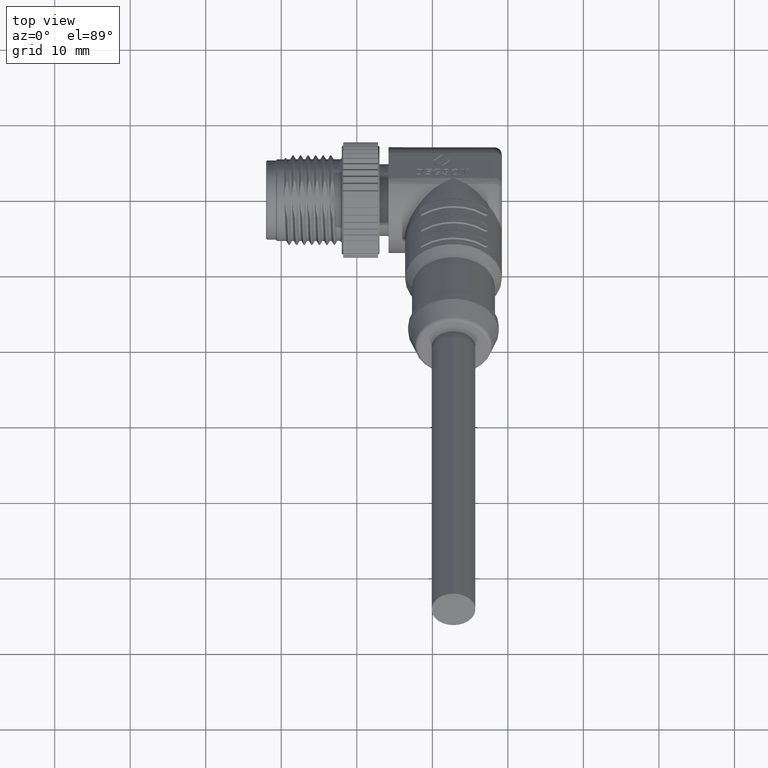
[diagram: clean part render]
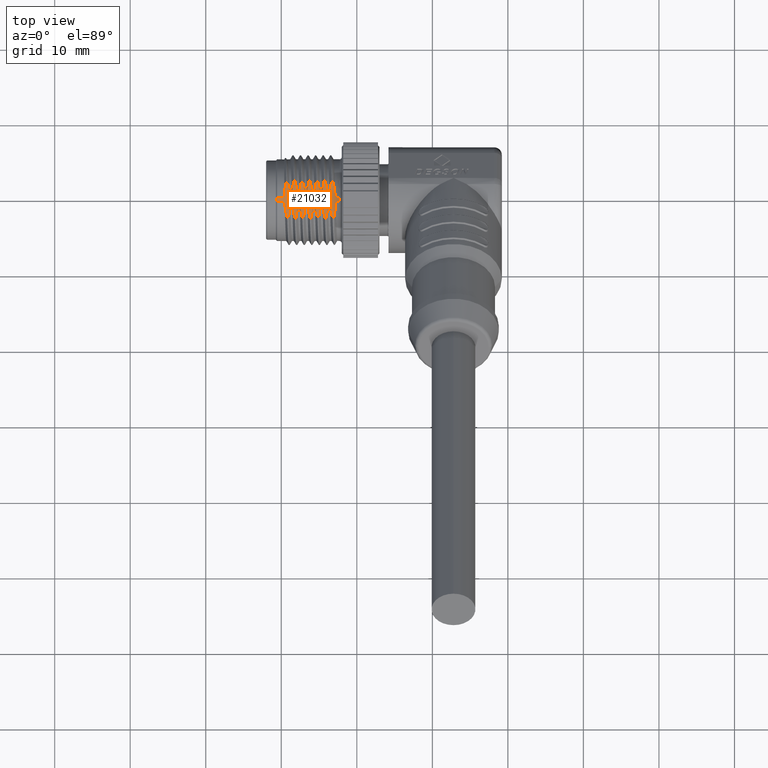
[diagram: same view with one face highlighted and labeled with its STEP entity id]
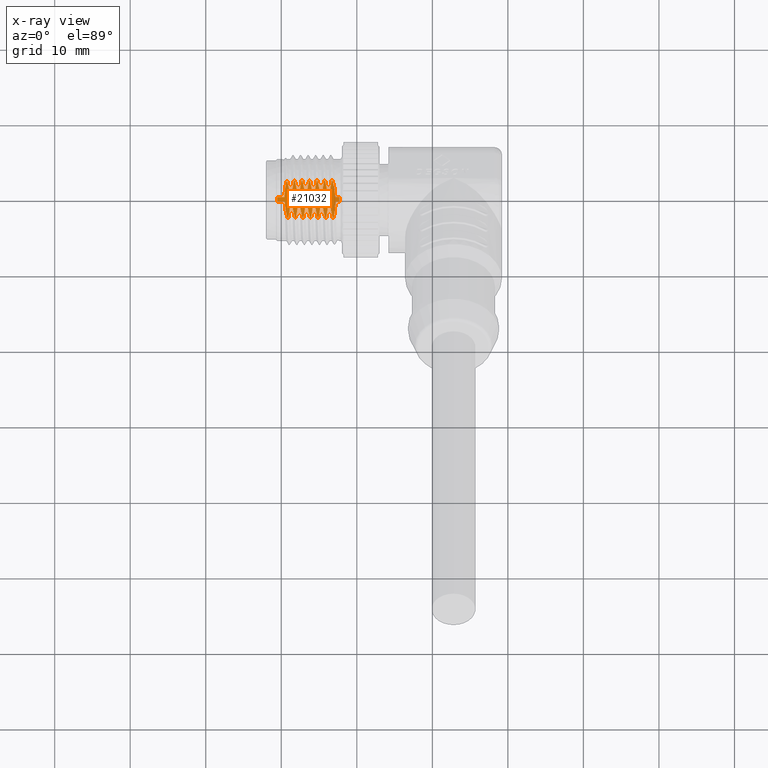
[diagram: x-ray of the same camera — body ghosted, the highlighted face saturated]
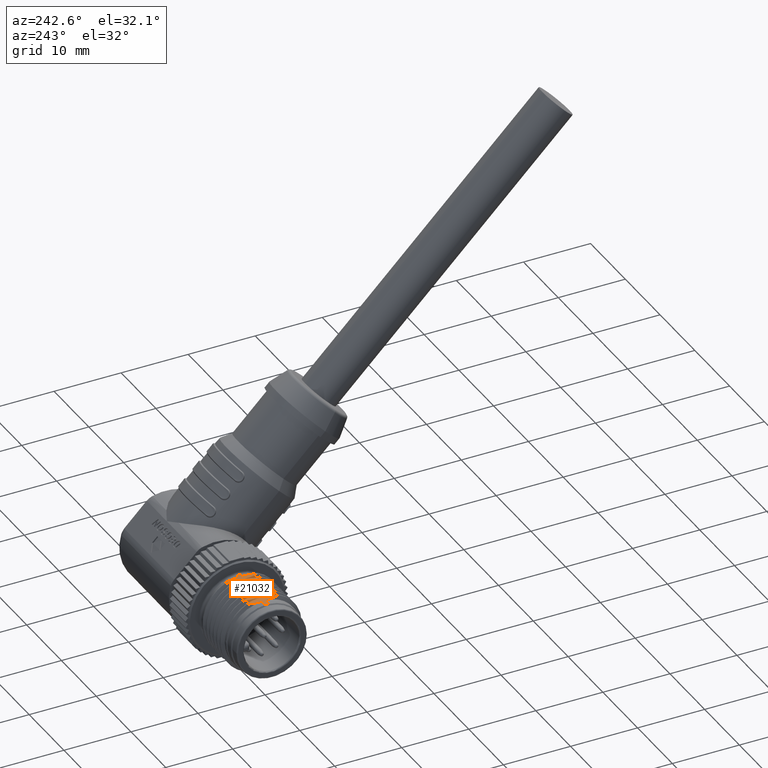
[diagram: same view with one face highlighted and labeled with its STEP entity id]
A machine part, top view. The second image highlights one B-rep face of the part: STEP entity #21032.
The next image is the same camera in x-ray: the body ghosted, the highlighted face saturated — about 0% of this face is hidden behind the body in this view.
A second angle (auxiliary view) of the same face is appended — the face is thin or edge-on in the first view.
In plain terms, the highlighted planar face has unit normal (0, 0, -1).
Its self-contained STEP definition (entity closure, byte-faithful):
#1044=DIRECTION('',(9.999999999989E-1,1.466614720524E-7,-1.479390784108E-6));
#1045=VECTOR('',#1044,9.861735220107E-1);
#1046=CARTESIAN_POINT('',(-5.499998745551E-1,-3.031043628207E-1,
5.400000180981E0));
#1047=LINE('',#1046,#1045);
#1070=CARTESIAN_POINT('',(4.758451730551E-1,1.318685910492E0,5.400006082940E0));
#1071=CARTESIAN_POINT('',(4.913522477618E-1,1.431905223739E0,5.400006082940E0));
#1072=CARTESIAN_POINT('',(5.264749140414E-1,1.660852474761E0,5.399996687401E0));
#1073=CARTESIAN_POINT('',(5.915335660793E-1,2.010904504959E0,5.400002469687E0));
#1074=CARTESIAN_POINT('',(6.435134863473E-1,2.250416775405E0,5.399996445797E0));
#1075=CARTESIAN_POINT('',(6.716387361948E-1,2.371564042817E0,5.399996445797E0));
#1089=DIRECTION('',(9.312771037324E-8,-9.999999999999E-1,3.503022343318E-7));
#1090=VECTOR('',#1089,6.062087109155E-1);
#1091=CARTESIAN_POINT('',(-5.499999310099E-1,3.031043480947E-1,
5.399999968625E0));
#1092=LINE('',#1091,#1090);
#1146=DIRECTION('',(-9.999999999874E-1,2.258880366862E-8,5.024770753766E-6));
#1147=VECTOR('',#1146,2.544969466393E-1);
#1148=CARTESIAN_POINT('',(1.418325507230E0,3.031043482722E-1,5.399998712403E0));
#1149=LINE('',#1148,#1147);
#1164=DIRECTION('',(-9.999999999611E-1,-3.531925421790E-8,8.816887197626E-6));
#1165=VECTOR('',#1164,9.682949655134E-1);
#1166=CARTESIAN_POINT('',(4.182950344658E-1,3.031043822942E-1,
5.399991431277E0));
#1167=LINE('',#1166,#1165);
#1168=CARTESIAN_POINT('',(4.361736474545E-1,-3.031042181870E-1,
5.399998722045E0));
#1169=CARTESIAN_POINT('',(4.509763668705E-1,-5.427595488345E-1,
5.399998722045E0));
#1170=CARTESIAN_POINT('',(4.990770733604E-1,-1.024053681732E0,
5.400000271320E0));
#1171=CARTESIAN_POINT('',(6.232628769638E-1,-1.746693454759E0,
5.400000967313E0));
#1172=CARTESIAN_POINT('',(7.400643013381E-1,-2.239895998504E0,
5.399997562057E0));
#1173=CARTESIAN_POINT('',(8.062326809865E-1,-2.488655192577E0,
5.399997562057E0));
#1182=DIRECTION('',(9.999999999998E-1,-6.368372953770E-7,-2.027353449002E-7));
#1183=VECTOR('',#1182,1.249968446376E-1);
#1184=CARTESIAN_POINT('',(8.062326809865E-1,-2.488655192577E0,
5.399997562057E0));
#1185=LINE('',#1184,#1183);
#1205=CARTESIAN_POINT('',(9.312295256240E-1,-2.488655272180E0,
5.399997536716E0));
#1206=CARTESIAN_POINT('',(9.853747384968E-1,-2.239567378136E0,
5.399997536716E0));
#1207=CARTESIAN_POINT('',(1.076981939258E0,-1.745809821720E0,5.400000977853E0));
#1208=CARTESIAN_POINT('',(1.160975259694E0,-1.023203833550E0,5.400000272441E0));
#1209=CARTESIAN_POINT('',(1.180955306094E0,-5.423699979430E-1,
5.399998712403E0));
#1210=CARTESIAN_POINT('',(1.181674492771E0,-3.031043482722E-1,
5.399998712403E0));
#1234=DIRECTION('',(9.999999999999E-1,5.132918582216E-7,3.789988213435E-8));
#1235=VECTOR('',#1234,2.544991546333E-1);
#1236=CARTESIAN_POINT('',(1.181674492771E0,-3.031043482722E-1,
5.399998712403E0));
#1237=LINE('',#1236,#1235);
#1278=CARTESIAN_POINT('',(1.436173647405E0,-3.031042176398E-1,
5.399998722049E0));
#1279=CARTESIAN_POINT('',(1.450976716299E0,-5.427652063264E-1,
5.399998722049E0));
#1280=CARTESIAN_POINT('',(1.499079086980E0,-1.024066567457E0,5.400000271318E0));
#1281=CARTESIAN_POINT('',(1.623261505101E0,-1.746685421875E0,5.400000967313E0));
#1282=CARTESIAN_POINT('',(1.740063381625E0,-2.239892540853E0,5.399997562057E0));
#1283=CARTESIAN_POINT('',(1.806232680986E0,-2.488655192577E0,5.399997562057E0));
#1292=DIRECTION('',(9.999999999998E-1,-6.368369720711E-7,-2.027360412494E-7));
#1293=VECTOR('',#1292,1.249968446377E-1);
#1294=CARTESIAN_POINT('',(1.806232680986E0,-2.488655192577E0,5.399997562057E0));
#1295=LINE('',#1294,#1293);
#1315=CARTESIAN_POINT('',(1.931229525624E0,-2.488655272180E0,5.399997536716E0));
#1316=CARTESIAN_POINT('',(1.985374813384E0,-2.239567033628E0,5.399997536716E0));
#1317=CARTESIAN_POINT('',(2.076982008472E0,-1.745809031225E0,5.400000977853E0));
#1318=CARTESIAN_POINT('',(2.160975027318E0,-1.023206306676E0,5.400000272441E0));
#1319=CARTESIAN_POINT('',(2.180955302860E0,-5.423710740453E-1,
5.399998712403E0));
#1320=CARTESIAN_POINT('',(2.181674492771E0,-3.031043482721E-1,
5.399998712403E0));
#1344=DIRECTION('',(9.999999999999E-1,5.132919195136E-7,3.790045098925E-8));
#1345=VECTOR('',#1344,2.544991546331E-1);
#1346=CARTESIAN_POINT('',(2.181674492771E0,-3.031043482721E-1,
5.399998712403E0));
#1347=LINE('',#1346,#1345);
#1388=CARTESIAN_POINT('',(2.436173647404E0,-3.031042176398E-1,
5.399998722049E0));
#1389=CARTESIAN_POINT('',(2.450976428233E0,-5.427605425487E-1,
5.399998722049E0));
#1390=CARTESIAN_POINT('',(2.499077416704E0,-1.024055952296E0,5.400000271318E0));
#1391=CARTESIAN_POINT('',(2.623262761554E0,-1.746692677592E0,5.400000967313E0));
#1392=CARTESIAN_POINT('',(2.740064211624E0,-2.239895661228E0,5.399997562057E0));
#1393=CARTESIAN_POINT('',(2.806232680985E0,-2.488655192577E0,5.399997562057E0));
#1402=DIRECTION('',(9.999999999998E-1,-6.368372101091E-7,-2.027354230616E-7));
#1403=VECTOR('',#1402,1.249968446377E-1);
#1404=CARTESIAN_POINT('',(2.806232680985E0,-2.488655192577E0,5.399997562057E0));
#1405=LINE('',#1404,#1403);
#1425=CARTESIAN_POINT('',(2.931229525623E0,-2.488655272180E0,5.399997536716E0));
#1426=CARTESIAN_POINT('',(2.985374747352E0,-2.239567337397E0,5.399997536716E0));
#1427=CARTESIAN_POINT('',(3.076981943063E0,-1.745809729767E0,5.400000977853E0));
#1428=CARTESIAN_POINT('',(3.160975212124E0,-1.023204354740E0,5.400000272441E0));
#1429=CARTESIAN_POINT('',(3.180955305413E0,-5.423702243700E-1,
5.399998712403E0));
#1430=CARTESIAN_POINT('',(3.181674492771E0,-3.031043482722E-1,
5.399998712403E0));
#1454=DIRECTION('',(9.999999999881E-1,-6.740062732002E-9,4.877231451051E-6));
#1455=VECTOR('',#1454,2.544970119758E-1);
#1456=CARTESIAN_POINT('',(3.181674492771E0,-3.031043482722E-1,
5.399998712403E0));
#1457=LINE('',#1456,#1455);
#1503=CARTESIAN_POINT('',(3.436171504743E0,-3.031043499875E-1,
5.399999953644E0));
#1504=CARTESIAN_POINT('',(3.450745839524E0,-5.425308730506E-1,
5.399999953644E0));
#1505=CARTESIAN_POINT('',(3.499104927850E0,-1.023487853618E0,5.399999072660E0));
#1506=CARTESIAN_POINT('',(3.623137751781E0,-1.746271612088E0,5.400003315225E0));
#1507=CARTESIAN_POINT('',(3.739992555808E0,-2.239723937327E0,5.399992882703E0));
#1508=CARTESIAN_POINT('',(3.806244905448E0,-2.488652672933E0,5.399992882703E0));
#1510=DIRECTION('',(9.999999916465E-1,-5.410223281456E-5,1.173884144615E-4));
#1511=VECTOR('',#1510,1.249997690710E-1);
#1512=CARTESIAN_POINT('',(3.806244905448E0,-2.488652672933E0,5.399992882703E0));
#1513=LINE('',#1512,#1511);
#1528=CARTESIAN_POINT('',(3.931244673475E0,-2.488659435700E0,5.400007556227E0));
#1529=CARTESIAN_POINT('',(3.985378868147E0,-2.239368695295E0,5.400007556227E0));
#1530=CARTESIAN_POINT('',(4.077082145441E0,-1.745364384242E0,5.399988822027E0));
#1531=CARTESIAN_POINT('',(4.161009222342E0,-1.022781518185E0,5.400027788565E0));
#1532=CARTESIAN_POINT('',(4.180925398797E0,-5.421837686793E-1,
5.399942611997E0));
#1533=CARTESIAN_POINT('',(4.181844582285E0,-3.031002838464E-1,
5.399942611997E0));
#1535=DIRECTION('',(9.999999755438E-1,-1.546733717529E-5,2.206198914105E-4));
#1536=VECTOR('',#1535,2.543290713397E-1);
#1537=CARTESIAN_POINT('',(4.181844582285E0,-3.031002838464E-1,
5.399942611997E0));
#1538=LINE('',#1537,#1536);
#1584=CARTESIAN_POINT('',(4.436173647404E0,-3.031042176399E-1,
5.399998722049E0));
#1585=CARTESIAN_POINT('',(4.450976379383E0,-5.427597516758E-1,
5.399998722049E0));
#1586=CARTESIAN_POINT('',(4.499077142405E0,-1.024054145517E0,5.400000271318E0));
#1587=CARTESIAN_POINT('',(4.623262864931E0,-1.746693354124E0,5.400000967313E0));
#1588=CARTESIAN_POINT('',(4.740064289599E0,-2.239895954371E0,5.399997562057E0));
#1589=CARTESIAN_POINT('',(4.806232680986E0,-2.488655192578E0,5.399997562057E0));
#1598=DIRECTION('',(9.999999999998E-1,-6.368369081255E-7,-2.027362117855E-7));
#1599=VECTOR('',#1598,1.249968446368E-1);
#1600=CARTESIAN_POINT('',(4.806232680986E0,-2.488655192578E0,5.399997562057E0));
#1601=LINE('',#1600,#1599);
#1621=CARTESIAN_POINT('',(4.931229525623E0,-2.488655272180E0,5.399997536716E0));
#1622=CARTESIAN_POINT('',(4.985373938804E0,-2.239571057016E0,5.399997536716E0));
#1623=CARTESIAN_POINT('',(5.076982031628E0,-1.745817969871E0,5.400000977853E0));
#1624=CARTESIAN_POINT('',(5.160981587529E0,-1.023133681522E0,5.400000272441E0));
#1625=CARTESIAN_POINT('',(5.180955397642E0,-5.423395408138E-1,
5.399998712403E0));
#1626=CARTESIAN_POINT('',(5.181674492771E0,-3.031043482722E-1,
5.399998712403E0));
#1650=DIRECTION('',(9.999999999999E-1,5.132918274656E-7,3.789977045723E-8));
#1651=VECTOR('',#1650,2.544991546339E-1);
#1652=CARTESIAN_POINT('',(5.181674492771E0,-3.031043482722E-1,
5.399998712403E0));
#1653=LINE('',#1652,#1651);
#1694=CARTESIAN_POINT('',(5.436173647404E0,-3.031042176399E-1,
5.399998722049E0));
#1695=CARTESIAN_POINT('',(5.450976369170E0,-5.427595863236E-1,
5.399998722049E0));
#1696=CARTESIAN_POINT('',(5.499077087122E0,-1.024053766283E0,5.400000271318E0));
#1697=CARTESIAN_POINT('',(5.623262862248E0,-1.746693373386E0,5.400000967313E0));
#1698=CARTESIAN_POINT('',(5.740064292050E0,-2.239895963587E0,5.399997562057E0));
#1699=CARTESIAN_POINT('',(5.806232680986E0,-2.488655192577E0,5.399997562057E0));
#1708=DIRECTION('',(9.999999999998E-1,-6.368373166990E-7,-2.027352880570E-7));
#1709=VECTOR('',#1708,1.249968446365E-1);
#1710=CARTESIAN_POINT('',(5.806232680986E0,-2.488655192577E0,5.399997562057E0));
#1711=LINE('',#1710,#1709);
#1731=CARTESIAN_POINT('',(5.931229525622E0,-2.488655272180E0,5.399997536716E0));
#1732=CARTESIAN_POINT('',(5.985373417848E0,-2.239573453599E0,5.399997536716E0));
#1733=CARTESIAN_POINT('',(6.076982274582E0,-1.745823215641E0,5.400000977853E0));
#1734=CARTESIAN_POINT('',(6.160986534244E0,-1.023078567994E0,5.400000272441E0));
#1735=CARTESIAN_POINT('',(6.180955469549E0,-5.423156182703E-1,
5.399998712403E0));
#1736=CARTESIAN_POINT('',(6.181674492771E0,-3.031043482721E-1,
5.399998712403E0));
#1760=DIRECTION('',(9.999999999938E-1,1.384357714635E-7,3.526260016911E-6));
#1761=VECTOR('',#1760,2.544976101183E-1);
#1762=CARTESIAN_POINT('',(6.181674492771E0,-3.031043482721E-1,
5.399998712403E0));
#1763=LINE('',#1762,#1761);
#1797=CARTESIAN_POINT('',(6.436172102888E0,-3.031043130406E-1,
5.399999609828E0));
#1798=CARTESIAN_POINT('',(6.450972286677E0,-5.427248953624E-1,
5.399999609828E0));
#1799=CARTESIAN_POINT('',(6.499072487120E0,-1.023971948761E0,5.400000064455E0));
#1800=CARTESIAN_POINT('',(6.623230992189E0,-1.746555604774E0,5.400000359665E0));
#1801=CARTESIAN_POINT('',(6.740049345197E0,-2.239837623E0,5.399999117811E0));
#1802=CARTESIAN_POINT('',(6.806231933853E0,-2.488655931654E0,5.399999117811E0));
#1804=DIRECTION('',(9.999999999999E-1,-3.366309411988E-7,-9.243224811939E-8));
#1805=VECTOR('',#1804,1.249983333885E-1);
#1806=CARTESIAN_POINT('',(6.806231933853E0,-2.488655931654E0,5.399999117811E0));
#1807=LINE('',#1806,#1805);
#1817=CARTESIAN_POINT('',(6.931230267241E0,-2.488655973732E0,5.399999106257E0));
#1818=CARTESIAN_POINT('',(6.985387603024E0,-2.239505225206E0,5.399999106257E0));
#1819=CARTESIAN_POINT('',(7.077008043172E0,-1.745663064640E0,5.400000364836E0));
#1820=CARTESIAN_POINT('',(7.160975807224E0,-1.023110824600E0,5.400000063688E0));
#1821=CARTESIAN_POINT('',(7.180957420026E0,-5.423303618415E-1,
5.399999608170E0));
#1822=CARTESIAN_POINT('',(7.181676042293E0,-3.031043529310E-1,
5.399999608170E0));
#1852=DIRECTION('',(9.999999999997E-1,-8.594053925484E-9,7.490763512368E-7));
#1853=VECTOR('',#1852,5.183239577071E-1);
#1854=CARTESIAN_POINT('',(7.181676042293E0,-3.031043529310E-1,
5.399999608170E0));
#1855=LINE('',#1854,#1853);
#1886=DIRECTION('',(0.E0,1.E0,2.637245418130E-13));
#1887=VECTOR('',#1886,6.062087147709E-1);
#1888=CARTESIAN_POINT('',(7.7E0,-3.031043573855E-1,5.399999996434E0));
#1889=LINE('',#1888,#1887);
#12723=DIRECTION('',(-9.999999999971E-1,-2.606348562702E-7,-2.376814961864E-6));
#12724=VECTOR('',#12723,5.361736474059E-1);
#12725=CARTESIAN_POINT('',(7.7E0,3.031043573854E-1,5.399999996434E0));
#12726=LINE('',#12725,#12724);
#12753=CARTESIAN_POINT('',(7.163826352596E0,3.031042176399E-1,
5.399998722049E0));
#12754=CARTESIAN_POINT('',(7.149019232712E0,5.428307916428E-1,
5.399998722049E0));
#12755=CARTESIAN_POINT('',(7.100898738939E0,1.024216817286E0,5.400000271318E0));
#12756=CARTESIAN_POINT('',(6.976740208948E0,1.746663853960E0,5.400000967313E0));
#12757=CARTESIAN_POINT('',(6.859939169864E0,2.239882948560E0,5.399997562057E0));
#12758=CARTESIAN_POINT('',(6.793767319013E0,2.488655192577E0,5.399997562057E0));
#12782=DIRECTION('',(-9.999999999998E-1,6.368372527465E-7,-2.027354372741E-7));
#12783=VECTOR('',#12782,1.249968446369E-1);
#12784=CARTESIAN_POINT('',(6.793767319013E0,2.488655192577E0,5.399997562057E0));
#12785=LINE('',#12784,#12783);
#12805=CARTESIAN_POINT('',(6.668770474376E0,2.488655272180E0,5.399997536716E0));
#12806=CARTESIAN_POINT('',(6.614626263695E0,2.239571988587E0,5.399997536716E0));
#12807=CARTESIAN_POINT('',(6.523018007177E0,1.745820055350E0,5.400000977853E0));
#12808=CARTESIAN_POINT('',(6.439017100655E0,1.023119213290E0,5.400000272441E0));
#12809=CARTESIAN_POINT('',(6.419044583471E0,5.423332573987E-1,
5.399998712403E0));
#12810=CARTESIAN_POINT('',(6.418325507229E0,3.031043482722E-1,
5.399998712403E0));
#12819=DIRECTION('',(-9.999999999999E-1,-5.132919581204E-7,3.790043353969E-8));
#12820=VECTOR('',#12819,2.544991546332E-1);
#12821=CARTESIAN_POINT('',(6.418325507229E0,3.031043482722E-1,
5.399998712403E0));
#12822=LINE('',#12821,#12820);
#12863=CARTESIAN_POINT('',(6.163826352596E0,3.031042176398E-1,
5.399998722049E0));
#12864=CARTESIAN_POINT('',(6.149022515747E0,5.427776394566E-1,
5.399998722049E0));
#12865=CARTESIAN_POINT('',(6.100916729411E0,1.024095064582E0,5.400000271318E0));
#12866=CARTESIAN_POINT('',(5.976738591226E0,1.746682482422E0,5.400000967313E0));
#12867=CARTESIAN_POINT('',(5.859936971786E0,2.239891212206E0,5.399997562057E0));
#12868=CARTESIAN_POINT('',(5.793767319012E0,2.488655192577E0,5.399997562057E0));
#12892=DIRECTION('',(-9.999999999998E-1,6.368372136677E-7,-2.027356149149E-7));
#12893=VECTOR('',#12892,1.249968446366E-1);
#12894=CARTESIAN_POINT('',(5.793767319012E0,2.488655192577E0,5.399997562057E0));
#12895=LINE('',#12894,#12893);
#12915=CARTESIAN_POINT('',(5.668770474375E0,2.488655272180E0,5.399997536716E0));
#12916=CARTESIAN_POINT('',(5.614625224885E0,2.239567209681E0,5.399997536716E0));
#12917=CARTESIAN_POINT('',(5.523018044598E0,1.745809441352E0,5.400000977853E0));
#12918=CARTESIAN_POINT('',(5.439024935015E0,1.023205966535E0,5.400000272441E0));
#12919=CARTESIAN_POINT('',(5.419044696691E0,5.423709246220E-1,
5.399998712403E0));
#12920=CARTESIAN_POINT('',(5.418325507229E0,3.031043482722E-1,
5.399998712403E0));
#12929=DIRECTION('',(-9.999999999999E-1,-5.132918656374E-7,3.789995891229E-8));
#12930=VECTOR('',#12929,2.544991546334E-1);
#12931=CARTESIAN_POINT('',(5.418325507229E0,3.031043482722E-1,
5.399998712403E0));
#12932=LINE('',#12931,#12930);
#12973=CARTESIAN_POINT('',(5.163826352595E0,3.031042176399E-1,
5.399998722049E0));
#12974=CARTESIAN_POINT('',(5.149021835162E0,5.427886581E-1,5.399998722049E0));
#12975=CARTESIAN_POINT('',(5.100913024187E0,1.024120321496E0,5.400000271318E0));
#12976=CARTESIAN_POINT('',(4.976738646660E0,1.746680030978E0,5.400000967313E0));
#12977=CARTESIAN_POINT('',(4.859937267597E0,2.239890100109E0,5.399997562057E0));
#12978=CARTESIAN_POINT('',(4.793767319013E0,2.488655192577E0,5.399997562057E0));
#13002=DIRECTION('',(-9.999999999998E-1,6.368375298650E-7,-2.027347906638E-7));
#13003=VECTOR('',#13002,1.249968446370E-1);
#13004=CARTESIAN_POINT('',(4.793767319013E0,2.488655192577E0,5.399997562057E0));
#13005=LINE('',#13004,#13003);
#13025=CARTESIAN_POINT('',(4.668770474376E0,2.488655272180E0,5.399997536716E0));
#13026=CARTESIAN_POINT('',(4.614625212684E0,2.239567153550E0,5.399997536716E0));
#13027=CARTESIAN_POINT('',(4.523018040171E0,1.745809314950E0,5.400000977853E0));
#13028=CARTESIAN_POINT('',(4.439025004386E0,1.023206727805E0,5.400000272441E0));
#13029=CARTESIAN_POINT('',(4.419044697685E0,5.423712553131E-1,
5.399998712403E0));
#13030=CARTESIAN_POINT('',(4.418325507229E0,3.031043482722E-1,
5.399998712403E0));
#13039=DIRECTION('',(-9.999999999999E-1,-5.132918680368E-7,3.789995193247E-8));
#13040=VECTOR('',#13039,2.544991546334E-1);
#13041=CARTESIAN_POINT('',(4.418325507229E0,3.031043482722E-1,
5.399998712403E0));
#13042=LINE('',#13041,#13040);
#13083=CARTESIAN_POINT('',(4.163826352595E0,3.031042176399E-1,
5.399998722049E0));
#13084=CARTESIAN_POINT('',(4.149021230897E0,5.427984411270E-1,
5.399998722049E0));
#13085=CARTESIAN_POINT('',(4.100909753541E0,1.024142760528E0,5.400000271318E0));
#13086=CARTESIAN_POINT('',(3.976738458774E0,1.746679048405E0,5.400000967313E0));
#13087=CARTESIAN_POINT('',(3.859937394895E0,2.239889621536E0,5.399997562057E0));
#13088=CARTESIAN_POINT('',(3.793767319013E0,2.488655192577E0,5.399997562057E0));
#13112=DIRECTION('',(-9.999999999998E-1,6.368376399988E-7,-2.027346840787E-7));
#13113=VECTOR('',#13112,1.249968446376E-1);
#13114=CARTESIAN_POINT('',(3.793767319013E0,2.488655192577E0,5.399997562057E0));
#13115=LINE('',#13114,#13113);
#13135=CARTESIAN_POINT('',(3.668770474376E0,2.488655272180E0,5.399997536716E0));
#13136=CARTESIAN_POINT('',(3.614626399107E0,2.239572611531E0,5.399997536716E0));
#13137=CARTESIAN_POINT('',(3.523016222800E0,1.745820815321E0,5.400000977853E0));
#13138=CARTESIAN_POINT('',(3.439007887312E0,1.023014667126E0,5.400000272441E0));
#13139=CARTESIAN_POINT('',(3.419044447200E0,5.422879214960E-1,
5.399998712403E0));
#13140=CARTESIAN_POINT('',(3.418325507229E0,3.031043482722E-1,
5.399998712403E0));
#13149=DIRECTION('',(-9.999999999999E-1,-5.132918444799E-7,3.789996240219E-8));
#13150=VECTOR('',#13149,2.544991546334E-1);
#13151=CARTESIAN_POINT('',(3.418325507229E0,3.031043482722E-1,
5.399998712403E0));
#13152=LINE('',#13151,#13150);
#13193=CARTESIAN_POINT('',(3.163826352595E0,3.031042176399E-1,
5.399998722049E0));
#13194=CARTESIAN_POINT('',(3.149024513318E0,5.427452988814E-1,
5.399998722049E0));
#13195=CARTESIAN_POINT('',(3.100927627705E0,1.024020950097E0,5.400000271318E0));
#13196=CARTESIAN_POINT('',(2.976738161568E0,1.746691048762E0,5.400000967313E0));
#13197=CARTESIAN_POINT('',(2.859935948287E0,2.239895060037E0,5.399997562057E0));
#13198=CARTESIAN_POINT('',(2.793767319013E0,2.488655192577E0,5.399997562057E0));
#13222=DIRECTION('',(-9.999999999907E-1,2.388340781633E-6,3.597752636217E-6));
#13223=VECTOR('',#13222,1.249965426439E-1);
#13224=CARTESIAN_POINT('',(2.793767319013E0,2.488655192577E0,5.399997562057E0));
#13225=LINE('',#13224,#13223);
#13252=CARTESIAN_POINT('',(2.668770776370E0,2.488655491112E0,5.399998011764E0));
#13253=CARTESIAN_POINT('',(2.614625567307E0,2.239567621945E0,5.399998011764E0));
#13254=CARTESIAN_POINT('',(2.523017923962E0,1.745809775196E0,5.400000756164E0));
#13255=CARTESIAN_POINT('',(2.439024756956E0,1.023203608567E0,5.400000335780E0));
#13256=CARTESIAN_POINT('',(2.419044693574E0,5.423698874481E-1,
5.399998712403E0));
#13257=CARTESIAN_POINT('',(2.418325507229E0,3.031043482722E-1,
5.399998712403E0));
#13259=DIRECTION('',(-9.999999999999E-1,-5.132918119806E-7,3.790043004979E-8));
#13260=VECTOR('',#13259,2.544991546332E-1);
#13261=CARTESIAN_POINT('',(2.418325507229E0,3.031043482722E-1,
5.399998712403E0));
#13262=LINE('',#13261,#13260);
#13303=CARTESIAN_POINT('',(2.163826352596E0,3.031042176399E-1,
5.399998722049E0));
#13304=CARTESIAN_POINT('',(2.149024147383E0,5.427512233516E-1,
5.399998722049E0));
#13305=CARTESIAN_POINT('',(2.100925686456E0,1.024034567917E0,5.400000271318E0));
#13306=CARTESIAN_POINT('',(1.976737569910E0,1.746692853742E0,5.400000967313E0));
#13307=CARTESIAN_POINT('',(1.859935753290E0,2.239895793130E0,5.399997562057E0));
#13308=CARTESIAN_POINT('',(1.793767319014E0,2.488655192577E0,5.399997562057E0));
#13332=DIRECTION('',(-9.999999999998E-1,6.368373877498E-7,-2.027351814712E-7));
#13333=VECTOR('',#13332,1.249968446376E-1);
#13334=CARTESIAN_POINT('',(1.793767319014E0,2.488655192577E0,5.399997562057E0));
#13335=LINE('',#13334,#13333);
#13355=CARTESIAN_POINT('',(1.668770474376E0,2.488655272180E0,5.399997536716E0));
#13356=CARTESIAN_POINT('',(1.614626914281E0,2.239574981520E0,5.399997536716E0));
#13357=CARTESIAN_POINT('',(1.523016234618E0,1.745826090246E0,5.400000977853E0));
#13358=CARTESIAN_POINT('',(1.439004150012E0,1.022973283991E0,5.400000272441E0));
#13359=CARTESIAN_POINT('',(1.419044393189E0,5.422699524785E-1,
5.399998712403E0));
#13360=CARTESIAN_POINT('',(1.418325507230E0,3.031043482722E-1,
5.399998712403E0));
#13580=CARTESIAN_POINT('',(1.163828560593E0,3.031043540210E-1,
5.399999991192E0));
#13581=CARTESIAN_POINT('',(1.156891000965E0,4.155491285937E-1,
5.399999991192E0));
#13582=CARTESIAN_POINT('',(1.138955175033E0,6.406946450800E-1,
5.399999829251E0));
#13583=CARTESIAN_POINT('',(1.100204668079E0,9.790248015037E-1,
5.400000610832E0));
#13584=CARTESIAN_POINT('',(1.066585872644E0,1.205346650462E0,5.399998688558E0));
#13585=CARTESIAN_POINT('',(1.047923366976E0,1.318686614884E0,5.399998688558E0));
#13591=CARTESIAN_POINT('',(1.047923366976E0,1.318686614884E0,5.399998688558E0));
#13592=CARTESIAN_POINT('',(1.025728374316E0,1.433886802473E0,5.399998688558E0));
#13593=CARTESIAN_POINT('',(9.773900789027E-1,1.665441301841E0,
5.399999952721E0));
#13594=CARTESIAN_POINT('',(8.936513516932E-1,2.015484751097E0,
5.400002132640E0));
#13595=CARTESIAN_POINT('',(8.301910073748E-1,2.252364564794E0,
5.399995055359E0));
#13596=CARTESIAN_POINT('',(7.966359351429E-1,2.371563270712E0,
5.399995055359E0));
#13624=DIRECTION('',(-9.999999999191E-1,6.176973981393E-6,1.112375407716E-5));
#13625=VECTOR('',#13624,1.249971989583E-1);
#13626=CARTESIAN_POINT('',(7.966359351429E-1,2.371563270712E0,
5.399995055359E0));
#13627=LINE('',#13626,#13625);
#13650=CARTESIAN_POINT('',(4.758451730551E-1,1.318685910492E0,
5.400006082940E0));
#13651=CARTESIAN_POINT('',(4.635791729356E-1,1.206345374266E0,
5.400006082940E0));
#13652=CARTESIAN_POINT('',(4.427981647178E-1,9.813437332881E-1,
5.399996018798E0));
#13653=CARTESIAN_POINT('',(4.234924405053E-1,6.425449813262E-1,
5.400004809796E0));
#13654=CARTESIAN_POINT('',(4.186461518552E-1,4.163374812584E-1,
5.399991431277E0));
#13655=CARTESIAN_POINT('',(4.182950344658E-1,3.031043822942E-1,
5.399991431277E0));
#18208=CARTESIAN_POINT('',(7.7E0,3.031043549671E-1,5.4E0));
#18210=VERTEX_POINT('',#18208);
#18214=CARTESIAN_POINT('',(7.163826352596E0,3.031042176399E-1,
5.399998722049E0));
#18215=VERTEX_POINT('',#18214);
#18224=CARTESIAN_POINT('',(-5.499998745551E-1,-3.031043628207E-1,
5.400000180981E0));
#18225=CARTESIAN_POINT('',(4.361736474545E-1,-3.031042181870E-1,
5.399998722045E0));
#18226=VERTEX_POINT('',#18224);
#18227=VERTEX_POINT('',#18225);
#18228=CARTESIAN_POINT('',(-5.499999310099E-1,3.031043480947E-1,
5.399999968625E0));
#18229=VERTEX_POINT('',#18228);
#18230=CARTESIAN_POINT('',(4.182950344658E-1,3.031043822942E-1,
5.399991431277E0));
#18231=VERTEX_POINT('',#18230);
#18232=VERTEX_POINT('',#13650);
#18233=VERTEX_POINT('',#1075);
#18234=CARTESIAN_POINT('',(7.966359351429E-1,2.371563270712E0,
5.399995055359E0));
#18235=VERTEX_POINT('',#18234);
#18236=VERTEX_POINT('',#13591);
#18237=VERTEX_POINT('',#13580);
#18238=CARTESIAN_POINT('',(1.418325507230E0,3.031043482722E-1,
5.399998712403E0));
#18239=VERTEX_POINT('',#18238);
#18240=VERTEX_POINT('',#13355);
#18241=CARTESIAN_POINT('',(1.793767319014E0,2.488655192577E0,5.399997562057E0));
#18242=VERTEX_POINT('',#18241);
#18243=VERTEX_POINT('',#13303);
#18244=CARTESIAN_POINT('',(2.418325507229E0,3.031043482722E-1,
5.399998712403E0));
#18245=VERTEX_POINT('',#18244);
#18246=VERTEX_POINT('',#13252);
#18247=CARTESIAN_POINT('',(2.793767319013E0,2.488655192577E0,5.399997562057E0));
#18248=VERTEX_POINT('',#18247);
#18249=VERTEX_POINT('',#13193);
#18250=CARTESIAN_POINT('',(3.418325507229E0,3.031043482722E-1,
5.399998712403E0));
#18251=VERTEX_POINT('',#18250);
#18252=VERTEX_POINT('',#13135);
#18253=CARTESIAN_POINT('',(3.793767319013E0,2.488655192577E0,5.399997562057E0));
#18254=VERTEX_POINT('',#18253);
#18255=VERTEX_POINT('',#13083);
#18256=CARTESIAN_POINT('',(4.418325507229E0,3.031043482722E-1,
5.399998712403E0));
#18257=VERTEX_POINT('',#18256);
#18258=VERTEX_POINT('',#13025);
#18259=CARTESIAN_POINT('',(4.793767319013E0,2.488655192577E0,5.399997562057E0));
#18260=VERTEX_POINT('',#18259);
#18261=VERTEX_POINT('',#12973);
#18262=CARTESIAN_POINT('',(5.418325507229E0,3.031043482722E-1,
5.399998712403E0));
#18263=VERTEX_POINT('',#18262);
#18264=VERTEX_POINT('',#12915);
#18265=CARTESIAN_POINT('',(5.793767319012E0,2.488655192577E0,5.399997562057E0));
#18266=VERTEX_POINT('',#18265);
#18267=VERTEX_POINT('',#12863);
#18268=CARTESIAN_POINT('',(6.418325507229E0,3.031043482722E-1,
5.399998712403E0));
#18269=VERTEX_POINT('',#18268);
#18270=VERTEX_POINT('',#12805);
#18271=CARTESIAN_POINT('',(6.793767319013E0,2.488655192577E0,5.399997562057E0));
#18272=VERTEX_POINT('',#18271);
#18273=CARTESIAN_POINT('',(7.7E0,-3.031043573855E-1,5.399999996434E0));
#18274=VERTEX_POINT('',#18273);
#18275=CARTESIAN_POINT('',(7.181676042293E0,-3.031043529310E-1,
5.399999608170E0));
#18276=VERTEX_POINT('',#18275);
#18277=VERTEX_POINT('',#1817);
#18278=CARTESIAN_POINT('',(6.806231933853E0,-2.488655931654E0,
5.399999117811E0));
#18279=VERTEX_POINT('',#18278);
#18280=VERTEX_POINT('',#1797);
#18281=CARTESIAN_POINT('',(6.181674492771E0,-3.031043482721E-1,
5.399998712403E0));
#18282=VERTEX_POINT('',#18281);
#18283=VERTEX_POINT('',#1731);
#18284=CARTESIAN_POINT('',(5.806232680986E0,-2.488655192577E0,
5.399997562057E0));
#18285=VERTEX_POINT('',#18284);
#18286=VERTEX_POINT('',#1694);
#18287=CARTESIAN_POINT('',(5.181674492771E0,-3.031043482722E-1,
5.399998712403E0));
#18288=VERTEX_POINT('',#18287);
#18289=VERTEX_POINT('',#1621);
#18290=CARTESIAN_POINT('',(4.806232680986E0,-2.488655192578E0,
5.399997562057E0));
#18291=VERTEX_POINT('',#18290);
#18292=VERTEX_POINT('',#1584);
#18293=CARTESIAN_POINT('',(4.181844582285E0,-3.031002838464E-1,
5.399942611997E0));
#18294=VERTEX_POINT('',#18293);
#18295=VERTEX_POINT('',#1528);
#18296=CARTESIAN_POINT('',(3.806244905448E0,-2.488652672933E0,
5.399992882703E0));
#18297=VERTEX_POINT('',#18296);
#18298=VERTEX_POINT('',#1503);
#18299=CARTESIAN_POINT('',(3.181674492771E0,-3.031043482722E-1,
5.399998712403E0));
#18300=VERTEX_POINT('',#18299);
#18301=VERTEX_POINT('',#1425);
#18302=CARTESIAN_POINT('',(2.806232680985E0,-2.488655192577E0,
5.399997562057E0));
#18303=VERTEX_POINT('',#18302);
#18304=VERTEX_POINT('',#1388);
#18305=CARTESIAN_POINT('',(2.181674492771E0,-3.031043482721E-1,
5.399998712403E0));
#18306=VERTEX_POINT('',#18305);
#18307=VERTEX_POINT('',#1315);
#18308=CARTESIAN_POINT('',(1.806232680986E0,-2.488655192577E0,
5.399997562057E0));
#18309=VERTEX_POINT('',#18308);
#18310=VERTEX_POINT('',#1278);
#18311=CARTESIAN_POINT('',(1.181674492771E0,-3.031043482722E-1,
5.399998712403E0));
#18312=VERTEX_POINT('',#18311);
#18313=VERTEX_POINT('',#1205);
#18314=CARTESIAN_POINT('',(8.062326809865E-1,-2.488655192577E0,
5.399997562057E0));
#18315=VERTEX_POINT('',#18314);
#20902=CARTESIAN_POINT('',(-1.E0,5.4E0,5.4E0));
#20903=DIRECTION('',(0.E0,0.E0,-1.E0));
#20904=DIRECTION('',(0.E0,-1.E0,0.E0));
#20905=AXIS2_PLACEMENT_3D('',#20902,#20903,#20904);
#20906=PLANE('',#20905);
#20907=ORIENTED_EDGE('',*,*,#20893,.F.);
#20909=ORIENTED_EDGE('',*,*,#20908,.F.);
#20911=ORIENTED_EDGE('',*,*,#20910,.F.);
#20913=ORIENTED_EDGE('',*,*,#20912,.F.);
#20915=ORIENTED_EDGE('',*,*,#20914,.T.);
#20917=ORIENTED_EDGE('',*,*,#20916,.F.);
#20919=ORIENTED_EDGE('',*,*,#20918,.F.);
#20921=ORIENTED_EDGE('',*,*,#20920,.F.);
#20923=ORIENTED_EDGE('',*,*,#20922,.F.);
#20925=ORIENTED_EDGE('',*,*,#20924,.F.);
#20927=ORIENTED_EDGE('',*,*,#20926,.F.);
#20929=ORIENTED_EDGE('',*,*,#20928,.F.);
#20931=ORIENTED_EDGE('',*,*,#20930,.F.);
#20933=ORIENTED_EDGE('',*,*,#20932,.F.);
#20935=ORIENTED_EDGE('',*,*,#20934,.F.);
#20937=ORIENTED_EDGE('',*,*,#20936,.F.);
#20939=ORIENTED_EDGE('',*,*,#20938,.F.);
#20941=ORIENTED_EDGE('',*,*,#20940,.F.);
#20943=ORIENTED_EDGE('',*,*,#20942,.F.);
#20945=ORIENTED_EDGE('',*,*,#20944,.F.);
#20947=ORIENTED_EDGE('',*,*,#20946,.F.);
#20949=ORIENTED_EDGE('',*,*,#20948,.F.);
#20951=ORIENTED_EDGE('',*,*,#20950,.F.);
#20953=ORIENTED_EDGE('',*,*,#20952,.F.);
#20955=ORIENTED_EDGE('',*,*,#20954,.F.);
#20957=ORIENTED_EDGE('',*,*,#20956,.F.);
#20959=ORIENTED_EDGE('',*,*,#20958,.F.);
#20961=ORIENTED_EDGE('',*,*,#20960,.F.);
#20963=ORIENTED_EDGE('',*,*,#20962,.F.);
#20965=ORIENTED_EDGE('',*,*,#20964,.F.);
#20967=ORIENTED_EDGE('',*,*,#20966,.F.);
#20969=ORIENTED_EDGE('',*,*,#20968,.F.);
#20971=ORIENTED_EDGE('',*,*,#20970,.F.);
#20973=ORIENTED_EDGE('',*,*,#20972,.F.);
#20975=ORIENTED_EDGE('',*,*,#20974,.F.);
#20977=ORIENTED_EDGE('',*,*,#20976,.F.);
#20979=ORIENTED_EDGE('',*,*,#20978,.F.);
#20981=ORIENTED_EDGE('',*,*,#20980,.F.);
#20983=ORIENTED_EDGE('',*,*,#20982,.F.);
#20985=ORIENTED_EDGE('',*,*,#20984,.F.);
#20987=ORIENTED_EDGE('',*,*,#20986,.F.);
#20989=ORIENTED_EDGE('',*,*,#20988,.F.);
#20991=ORIENTED_EDGE('',*,*,#20990,.F.);
#20993=ORIENTED_EDGE('',*,*,#20992,.F.);
#20995=ORIENTED_EDGE('',*,*,#20994,.F.);
#20997=ORIENTED_EDGE('',*,*,#20996,.F.);
#20999=ORIENTED_EDGE('',*,*,#20998,.F.);
#21001=ORIENTED_EDGE('',*,*,#21000,.F.);
#21003=ORIENTED_EDGE('',*,*,#21002,.F.);
#21005=ORIENTED_EDGE('',*,*,#21004,.F.);
#21007=ORIENTED_EDGE('',*,*,#21006,.F.);
#21009=ORIENTED_EDGE('',*,*,#21008,.F.);
#21011=ORIENTED_EDGE('',*,*,#21010,.F.);
#21013=ORIENTED_EDGE('',*,*,#21012,.F.);
#21015=ORIENTED_EDGE('',*,*,#21014,.F.);
#21017=ORIENTED_EDGE('',*,*,#21016,.F.);
#21019=ORIENTED_EDGE('',*,*,#21018,.F.);
#21021=ORIENTED_EDGE('',*,*,#21020,.F.);
#21023=ORIENTED_EDGE('',*,*,#21022,.F.);
#21025=ORIENTED_EDGE('',*,*,#21024,.F.);
#21027=ORIENTED_EDGE('',*,*,#21026,.F.);
#21029=ORIENTED_EDGE('',*,*,#21028,.F.);
#21030=EDGE_LOOP('',(#20907,#20909,#20911,#20913,#20915,#20917,#20919,#20921,
#20923,#20925,#20927,#20929,#20931,#20933,#20935,#20937,#20939,#20941,#20943,
#20945,#20947,#20949,#20951,#20953,#20955,#20957,#20959,#20961,#20963,#20965,
#20967,#20969,#20971,#20973,#20975,#20977,#20979,#20981,#20983,#20985,#20987,
#20989,#20991,#20993,#20995,#20997,#20999,#21001,#21003,#21005,#21007,#21009,
#21011,#21013,#21015,#21017,#21019,#21021,#21023,#21025,#21027,#21029));
#21031=FACE_OUTER_BOUND('',#21030,.F.);
#21032=ADVANCED_FACE('',(#21031),#20906,.F.);
#1076=B_SPLINE_CURVE_WITH_KNOTS('',3,(#1070,#1071,#1072,#1073,#1074,#1075),
.UNSPECIFIED.,.F.,.F.,(4,1,1,4),(0.E0,3.333333333333E-1,6.666666666667E-1,1.E0),
.UNSPECIFIED.);
#1174=B_SPLINE_CURVE_WITH_KNOTS('',3,(#1168,#1169,#1170,#1171,#1172,#1173),
.UNSPECIFIED.,.F.,.F.,(4,1,1,4),(0.E0,3.333333333333E-1,6.666666666667E-1,1.E0),
.UNSPECIFIED.);
#1211=B_SPLINE_CURVE_WITH_KNOTS('',3,(#1205,#1206,#1207,#1208,#1209,#1210),
.UNSPECIFIED.,.F.,.F.,(4,1,1,4),(0.E0,3.333333333333E-1,6.666666666667E-1,1.E0),
.UNSPECIFIED.);
#1284=B_SPLINE_CURVE_WITH_KNOTS('',3,(#1278,#1279,#1280,#1281,#1282,#1283),
.UNSPECIFIED.,.F.,.F.,(4,1,1,4),(0.E0,3.333333333333E-1,6.666666666667E-1,1.E0),
.UNSPECIFIED.);
#1321=B_SPLINE_CURVE_WITH_KNOTS('',3,(#1315,#1316,#1317,#1318,#1319,#1320),
.UNSPECIFIED.,.F.,.F.,(4,1,1,4),(0.E0,3.333333333333E-1,6.666666666667E-1,1.E0),
.UNSPECIFIED.);
#1394=B_SPLINE_CURVE_WITH_KNOTS('',3,(#1388,#1389,#1390,#1391,#1392,#1393),
.UNSPECIFIED.,.F.,.F.,(4,1,1,4),(0.E0,3.333333333333E-1,6.666666666667E-1,1.E0),
.UNSPECIFIED.);
#1431=B_SPLINE_CURVE_WITH_KNOTS('',3,(#1425,#1426,#1427,#1428,#1429,#1430),
.UNSPECIFIED.,.F.,.F.,(4,1,1,4),(0.E0,3.333333333333E-1,6.666666666667E-1,1.E0),
.UNSPECIFIED.);
#1509=B_SPLINE_CURVE_WITH_KNOTS('',3,(#1503,#1504,#1505,#1506,#1507,#1508),
.UNSPECIFIED.,.F.,.F.,(4,1,1,4),(0.E0,3.333333333333E-1,6.666666666667E-1,1.E0),
.UNSPECIFIED.);
#1534=B_SPLINE_CURVE_WITH_KNOTS('',3,(#1528,#1529,#1530,#1531,#1532,#1533),
.UNSPECIFIED.,.F.,.F.,(4,1,1,4),(0.E0,3.333333333333E-1,6.666666666667E-1,1.E0),
.UNSPECIFIED.);
#1590=B_SPLINE_CURVE_WITH_KNOTS('',3,(#1584,#1585,#1586,#1587,#1588,#1589),
.UNSPECIFIED.,.F.,.F.,(4,1,1,4),(0.E0,3.333333333333E-1,6.666666666667E-1,1.E0),
.UNSPECIFIED.);
#1627=B_SPLINE_CURVE_WITH_KNOTS('',3,(#1621,#1622,#1623,#1624,#1625,#1626),
.UNSPECIFIED.,.F.,.F.,(4,1,1,4),(0.E0,3.333333333333E-1,6.666666666667E-1,1.E0),
.UNSPECIFIED.);
#1700=B_SPLINE_CURVE_WITH_KNOTS('',3,(#1694,#1695,#1696,#1697,#1698,#1699),
.UNSPECIFIED.,.F.,.F.,(4,1,1,4),(0.E0,3.333333333333E-1,6.666666666667E-1,1.E0),
.UNSPECIFIED.);
#1737=B_SPLINE_CURVE_WITH_KNOTS('',3,(#1731,#1732,#1733,#1734,#1735,#1736),
.UNSPECIFIED.,.F.,.F.,(4,1,1,4),(0.E0,3.333333333333E-1,6.666666666667E-1,1.E0),
.UNSPECIFIED.);
#1803=B_SPLINE_CURVE_WITH_KNOTS('',3,(#1797,#1798,#1799,#1800,#1801,#1802),
.UNSPECIFIED.,.F.,.F.,(4,1,1,4),(0.E0,3.333333333333E-1,6.666666666667E-1,1.E0),
.UNSPECIFIED.);
#1823=B_SPLINE_CURVE_WITH_KNOTS('',3,(#1817,#1818,#1819,#1820,#1821,#1822),
.UNSPECIFIED.,.F.,.F.,(4,1,1,4),(0.E0,3.333333333333E-1,6.666666666667E-1,1.E0),
.UNSPECIFIED.);
#12759=B_SPLINE_CURVE_WITH_KNOTS('',3,(#12753,#12754,#12755,#12756,#12757,
#12758),.UNSPECIFIED.,.F.,.F.,(4,1,1,4),(0.E0,3.333333333333E-1,
6.666666666667E-1,1.E0),.UNSPECIFIED.);
#12811=B_SPLINE_CURVE_WITH_KNOTS('',3,(#12805,#12806,#12807,#12808,#12809,
#12810),.UNSPECIFIED.,.F.,.F.,(4,1,1,4),(0.E0,3.333333333333E-1,
6.666666666667E-1,1.E0),.UNSPECIFIED.);
#12869=B_SPLINE_CURVE_WITH_KNOTS('',3,(#12863,#12864,#12865,#12866,#12867,
#12868),.UNSPECIFIED.,.F.,.F.,(4,1,1,4),(0.E0,3.333333333333E-1,
6.666666666667E-1,1.E0),.UNSPECIFIED.);
#12921=B_SPLINE_CURVE_WITH_KNOTS('',3,(#12915,#12916,#12917,#12918,#12919,
#12920),.UNSPECIFIED.,.F.,.F.,(4,1,1,4),(0.E0,3.333333333333E-1,
6.666666666667E-1,1.E0),.UNSPECIFIED.);
#12979=B_SPLINE_CURVE_WITH_KNOTS('',3,(#12973,#12974,#12975,#12976,#12977,
#12978),.UNSPECIFIED.,.F.,.F.,(4,1,1,4),(0.E0,3.333333333333E-1,
6.666666666667E-1,1.E0),.UNSPECIFIED.);
#13031=B_SPLINE_CURVE_WITH_KNOTS('',3,(#13025,#13026,#13027,#13028,#13029,
#13030),.UNSPECIFIED.,.F.,.F.,(4,1,1,4),(0.E0,3.333333333333E-1,
6.666666666667E-1,1.E0),.UNSPECIFIED.);
#13089=B_SPLINE_CURVE_WITH_KNOTS('',3,(#13083,#13084,#13085,#13086,#13087,
#13088),.UNSPECIFIED.,.F.,.F.,(4,1,1,4),(0.E0,3.333333333333E-1,
6.666666666667E-1,1.E0),.UNSPECIFIED.);
#13141=B_SPLINE_CURVE_WITH_KNOTS('',3,(#13135,#13136,#13137,#13138,#13139,
#13140),.UNSPECIFIED.,.F.,.F.,(4,1,1,4),(0.E0,3.333333333333E-1,
6.666666666667E-1,1.E0),.UNSPECIFIED.);
#13199=B_SPLINE_CURVE_WITH_KNOTS('',3,(#13193,#13194,#13195,#13196,#13197,
#13198),.UNSPECIFIED.,.F.,.F.,(4,1,1,4),(0.E0,3.333333333333E-1,
6.666666666667E-1,1.E0),.UNSPECIFIED.);
#13258=B_SPLINE_CURVE_WITH_KNOTS('',3,(#13252,#13253,#13254,#13255,#13256,
#13257),.UNSPECIFIED.,.F.,.F.,(4,1,1,4),(0.E0,3.333333333333E-1,
6.666666666667E-1,1.E0),.UNSPECIFIED.);
#13309=B_SPLINE_CURVE_WITH_KNOTS('',3,(#13303,#13304,#13305,#13306,#13307,
#13308),.UNSPECIFIED.,.F.,.F.,(4,1,1,4),(0.E0,3.333333333333E-1,
6.666666666667E-1,1.E0),.UNSPECIFIED.);
#13361=B_SPLINE_CURVE_WITH_KNOTS('',3,(#13355,#13356,#13357,#13358,#13359,
#13360),.UNSPECIFIED.,.F.,.F.,(4,1,1,4),(0.E0,3.333333333333E-1,
6.666666666667E-1,1.E0),.UNSPECIFIED.);
#13586=B_SPLINE_CURVE_WITH_KNOTS('',3,(#13580,#13581,#13582,#13583,#13584,
#13585),.UNSPECIFIED.,.F.,.F.,(4,1,1,4),(0.E0,3.333333333333E-1,
6.666666666667E-1,1.E0),.UNSPECIFIED.);
#13597=B_SPLINE_CURVE_WITH_KNOTS('',3,(#13591,#13592,#13593,#13594,#13595,
#13596),.UNSPECIFIED.,.F.,.F.,(4,1,1,4),(0.E0,3.333333333333E-1,
6.666666666667E-1,1.E0),.UNSPECIFIED.);
#13656=B_SPLINE_CURVE_WITH_KNOTS('',3,(#13650,#13651,#13652,#13653,#13654,
#13655),.UNSPECIFIED.,.F.,.F.,(4,1,1,4),(0.E0,3.333333333333E-1,
6.666666666667E-1,1.E0),.UNSPECIFIED.);
#20893=EDGE_CURVE('',#18226,#18227,#1047,.T.);
#20908=EDGE_CURVE('',#18229,#18226,#1092,.T.);
#20910=EDGE_CURVE('',#18231,#18229,#1167,.T.);
#20912=EDGE_CURVE('',#18232,#18231,#13656,.T.);
#20914=EDGE_CURVE('',#18232,#18233,#1076,.T.);
#20916=EDGE_CURVE('',#18235,#18233,#13627,.T.);
#20918=EDGE_CURVE('',#18236,#18235,#13597,.T.);
#20920=EDGE_CURVE('',#18237,#18236,#13586,.T.);
#20922=EDGE_CURVE('',#18239,#18237,#1149,.T.);
#20924=EDGE_CURVE('',#18240,#18239,#13361,.T.);
#20926=EDGE_CURVE('',#18242,#18240,#13335,.T.);
#20928=EDGE_CURVE('',#18243,#18242,#13309,.T.);
#20930=EDGE_CURVE('',#18245,#18243,#13262,.T.);
#20932=EDGE_CURVE('',#18246,#18245,#13258,.T.);
#20934=EDGE_CURVE('',#18248,#18246,#13225,.T.);
#20936=EDGE_CURVE('',#18249,#18248,#13199,.T.);
#20938=EDGE_CURVE('',#18251,#18249,#13152,.T.);
#20940=EDGE_CURVE('',#18252,#18251,#13141,.T.);
#20942=EDGE_CURVE('',#18254,#18252,#13115,.T.);
#20944=EDGE_CURVE('',#18255,#18254,#13089,.T.);
#20946=EDGE_CURVE('',#18257,#18255,#13042,.T.);
#20948=EDGE_CURVE('',#18258,#18257,#13031,.T.);
#20950=EDGE_CURVE('',#18260,#18258,#13005,.T.);
#20952=EDGE_CURVE('',#18261,#18260,#12979,.T.);
#20954=EDGE_CURVE('',#18263,#18261,#12932,.T.);
#20956=EDGE_CURVE('',#18264,#18263,#12921,.T.);
#20958=EDGE_CURVE('',#18266,#18264,#12895,.T.);
#20960=EDGE_CURVE('',#18267,#18266,#12869,.T.);
#20962=EDGE_CURVE('',#18269,#18267,#12822,.T.);
#20964=EDGE_CURVE('',#18270,#18269,#12811,.T.);
#20966=EDGE_CURVE('',#18272,#18270,#12785,.T.);
#20968=EDGE_CURVE('',#18215,#18272,#12759,.T.);
#20970=EDGE_CURVE('',#18210,#18215,#12726,.T.);
#20972=EDGE_CURVE('',#18274,#18210,#1889,.T.);
#20974=EDGE_CURVE('',#18276,#18274,#1855,.T.);
#20976=EDGE_CURVE('',#18277,#18276,#1823,.T.);
#20978=EDGE_CURVE('',#18279,#18277,#1807,.T.);
#20980=EDGE_CURVE('',#18280,#18279,#1803,.T.);
#20982=EDGE_CURVE('',#18282,#18280,#1763,.T.);
#20984=EDGE_CURVE('',#18283,#18282,#1737,.T.);
#20986=EDGE_CURVE('',#18285,#18283,#1711,.T.);
#20988=EDGE_CURVE('',#18286,#18285,#1700,.T.);
#20990=EDGE_CURVE('',#18288,#18286,#1653,.T.);
#20992=EDGE_CURVE('',#18289,#18288,#1627,.T.);
#20994=EDGE_CURVE('',#18291,#18289,#1601,.T.);
#20996=EDGE_CURVE('',#18292,#18291,#1590,.T.);
#20998=EDGE_CURVE('',#18294,#18292,#1538,.T.);
#21000=EDGE_CURVE('',#18295,#18294,#1534,.T.);
#21002=EDGE_CURVE('',#18297,#18295,#1513,.T.);
#21004=EDGE_CURVE('',#18298,#18297,#1509,.T.);
#21006=EDGE_CURVE('',#18300,#18298,#1457,.T.);
#21008=EDGE_CURVE('',#18301,#18300,#1431,.T.);
#21010=EDGE_CURVE('',#18303,#18301,#1405,.T.);
#21012=EDGE_CURVE('',#18304,#18303,#1394,.T.);
#21014=EDGE_CURVE('',#18306,#18304,#1347,.T.);
#21016=EDGE_CURVE('',#18307,#18306,#1321,.T.);
#21018=EDGE_CURVE('',#18309,#18307,#1295,.T.);
#21020=EDGE_CURVE('',#18310,#18309,#1284,.T.);
#21022=EDGE_CURVE('',#18312,#18310,#1237,.T.);
#21024=EDGE_CURVE('',#18313,#18312,#1211,.T.);
#21026=EDGE_CURVE('',#18315,#18313,#1185,.T.);
#21028=EDGE_CURVE('',#18227,#18315,#1174,.T.);